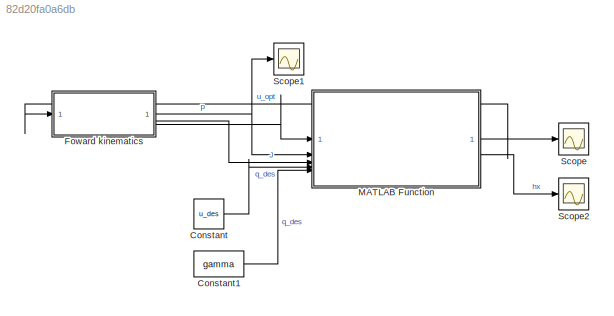
MODEL slx_82d20fa0a6db
KIND model
CONFIG AbsTol = auto
CONFIG EnableMultiTasking = off
CONFIG FixedStep = Ts
CONFIG MaxStep = auto
CONFIG MinStep = auto
CONFIG RelTol = 1e-3
CONFIG SampleTimeConstraint = Unconstrained
CONFIG SolverName = FixedStepAuto
CONFIG StartTime = 0.0
CONFIG StopTime = Tf
BLOCK [Constant] Constant
  Value = u_des
BLOCK [Constant] Constant1
  Value = gamma
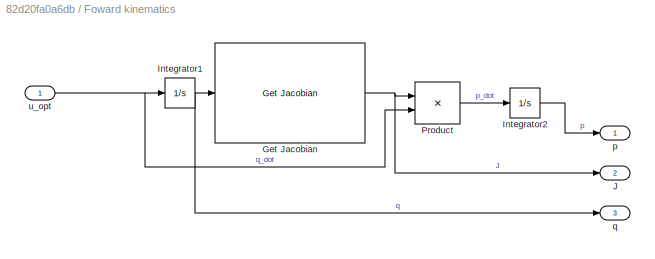
BLOCK [SubSystem] Foward kinematics
BLOCK [Reference] Foward kinematics/Get Jacobian  REF=robotmaniplib/Get Jacobian
  SourceBlock = robotmaniplib/Get Jacobian
  SourceType = Get Jacobian
BLOCK [Integrator] Foward kinematics/Integrator1
  InitialCondition = init_q
BLOCK [Integrator] Foward kinematics/Integrator2
  InitialCondition = [0;0;0;InitPos]
BLOCK [Outport] Foward kinematics/J
  Port = 2
BLOCK [Product] Foward kinematics/Product
  Multiplication = Matrix(*)
BLOCK [Outport] Foward kinematics/p
BLOCK [Outport] Foward kinematics/q
  Port = 3
BLOCK [Inport] Foward kinematics/u_opt
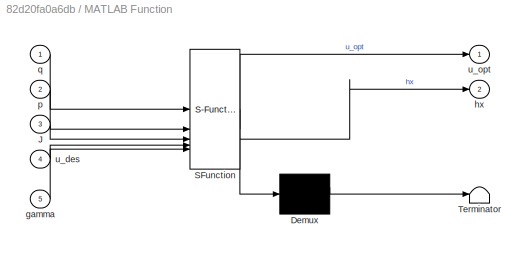
BLOCK [SubSystem] MATLAB Function
  ErrorFcn = Stateflow.Translate.translate
  PermitHierarchicalResolution = ExplicitOnly
  SFBlockType = MATLAB Function
  TreatAsAtomicUnit = on
BLOCK [Demux] MATLAB Function/ Demux 
  Outputs = 1
BLOCK [S-Function] MATLAB Function/ SFunction 
  EnableBusSupport = on
  FunctionName = sf_sfun
  PortCounts = [5 3]
  SFcnIsStateOwnerBlock = off
  SFunctionDeploymentMode = off
  Tag = Stateflow S-Function 2
BLOCK [Terminator] MATLAB Function/ Terminator 
BLOCK [Inport] MATLAB Function/J
  Port = 3
BLOCK [Inport] MATLAB Function/gamma
  Port = 5
BLOCK [Outport] MATLAB Function/hx
  Port = 2
BLOCK [Inport] MATLAB Function/p
  Port = 2
BLOCK [Inport] MATLAB Function/q
BLOCK [Inport] MATLAB Function/u_des
  Port = 4
BLOCK [Outport] MATLAB Function/u_opt
BLOCK [Scope] Scope
  Floating = off
  NumInputPorts = 1
  ScopeSpecificationString = Simulink.scopes.TimeScopeBlockCfg('CurrentConfiguration', extmgr.ConfigurationSet(extmgr.Configuration('Core','General UI',true),extmgr.Configuration('Core','Source UI',true),extmgr.Configuration('Sources','WiredSimulink',true),extmgr.Configuration('Visuals','Time Domain',true,'SerializedDisplays',{struct('MinYLimReal','-0.58781','MaxYLimReal','1.17642','YLabelReal','','MinYLimMag','0.00000','MaxY...<+1466ch>
BLOCK [Scope] Scope1
  Floating = off
  NumInputPorts = 1
  ScopeSpecificationString = Simulink.scopes.TimeScopeBlockCfg('CurrentConfiguration', extmgr.ConfigurationSet(extmgr.Configuration('Core','General UI',true),extmgr.Configuration('Core','Source UI',true),extmgr.Configuration('Sources','WiredSimulink',true,'DataLoggingVariableName','ScopeData1'),extmgr.Configuration('Visuals','Time Domain',true,'SerializedDisplays',{struct('MinYLimReal','-0.9085','MaxYLimReal','3.01591','YLabe...<+1479ch>
BLOCK [Scope] Scope2
  Floating = off
  NumInputPorts = 1
  ScopeSpecificationString = Simulink.scopes.TimeScopeBlockCfg('CurrentConfiguration', extmgr.ConfigurationSet(extmgr.Configuration('Core','General UI',true),extmgr.Configuration('Core','Source UI',true),extmgr.Configuration('Sources','WiredSimulink',true,'DataLoggingVariableName','ScopeData1'),extmgr.Configuration('Visuals','Time Domain',true,'SerializedDisplays',{struct('MinYLimReal','1.48223','MaxYLimReal','3.5257','YLabel...<+1444ch>
LINE Constant1:1 -> MATLAB Function:5
LINE Constant:1 -> MATLAB Function:4
NET Foward kinematics/Get Jacobian:1 -> Foward kinematics/J:1, Foward kinematics/Product:1
NET Foward kinematics/Integrator1:1 -> Foward kinematics/Get Jacobian:1, Foward kinematics/q:1
LINE Foward kinematics/Integrator2:1 -> Foward kinematics/p:1
LINE Foward kinematics/Product:1 -> Foward kinematics/Integrator2:1
NET Foward kinematics/u_opt:1 -> Foward kinematics/Integrator1:1, Foward kinematics/Product:2
NET Foward kinematics:1 -> MATLAB Function:2, Scope1:1
LINE Foward kinematics:2 -> MATLAB Function:3
LINE Foward kinematics:3 -> MATLAB Function:1
NET MATLAB Function:1 -> Foward kinematics:1, Scope:1
LINE MATLAB Function:2 -> Scope2:1
note: NET lines group one-source signal fan-out (src -> all destinations, sorted); 1:1 wires keep LINE
CHART MATLAB Function states=1 transitions=1
  STATE_LABEL 'eML_blk_kernel()'
  STATE_LABEL "SCRIPT:\nfunction [u_opt, hx]  = CBF_solver(q, p, J, u_des, gamma)\n\n    u_opt = double([0 0 0 0 0 0]');\n    hx = double(0);\n\n    p_obs = [0 0.4 1]'; % Position of the obstacle\n    R = 0.1; % Radious of the obstacle\n    R_w = 0.1; % Radious of the wrist of robot\n\n    coder.extrinsic('py.manipulator_CBF_cvxpy.manipulator_cbf');\n\n\n    result = py.manipulator_CBF_cvxpy.manipulator_cbf(q, p(4:6), J, u_d...<+93ch>"
CHART  states=0 transitions=0
